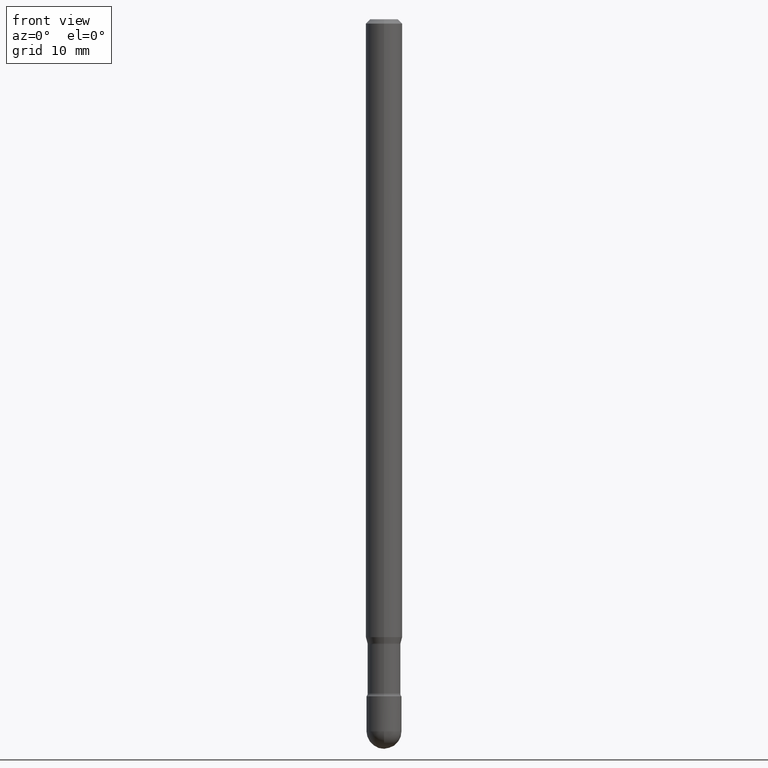
[diagram: clean part render]
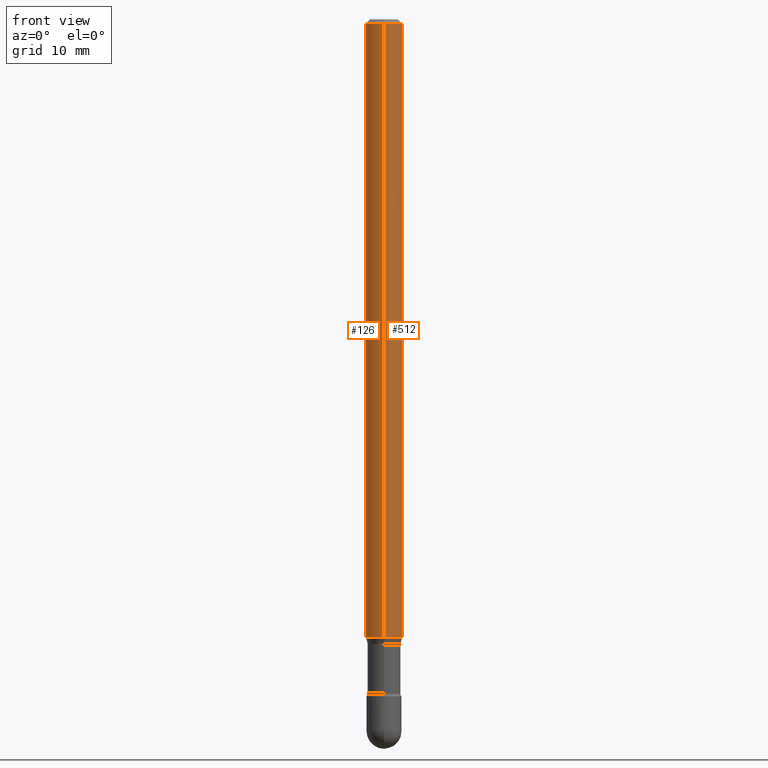
[diagram: same view with one multi-face feature highlighted, each face labeled with its STEP entity id]
A machine part, front view. The highlighted faces form ONE feature: a constant-radius fillet chain: 2 tangent blend faces with common blend radius 1.5875 mm. The faces share edges in the B-rep.
Their STEP definitions:
[1] entity #126 (Cylinder):
#15 = DIRECTION ( 'NONE',  ( -6.982962677686265922E-15, -1.000000000000000000, 4.370956789862821150E-15 ) ) ;
#23 = CARTESIAN_POINT ( 'NONE',  ( -4.364351673553912750E-16, -0.06250000000000005551, -0.01499999999999986587 ) ) ;
#40 = CARTESIAN_POINT ( 'NONE',  ( 4.440892098501144838E-16, 0.06249999999999263089, -2.117234490073830244 ) ) ;
#52 = DIRECTION ( 'NONE',  ( -2.445517834592790864E-29, 3.491411127372860730E-15, 1.000000000000000000 ) ) ;
#62 = EDGE_CURVE ( 'NONE', #348, #566, #446, .T. ) ;
#73 = VECTOR ( 'NONE', #52, 39.37007874015748143 ) ;
#87 = DIRECTION ( 'NONE',  ( -2.445517834592790864E-29, 3.491411127372860730E-15, 1.000000000000000000 ) ) ;
#98 = CYLINDRICAL_SURFACE ( 'NONE', #368, 0.06250000000000000000 ) ;
#104 = EDGE_LOOP ( 'NONE', ( #499, #440, #171, #421 ) ) ;
#109 = CARTESIAN_POINT ( 'NONE',  ( -1.169113584055446105E-44, 1.669184350826100908E-30, 4.780733988912460139E-16 ) ) ;
#126 = ADVANCED_FACE ( 'NONE', ( #494 ), #98, .T. ) ;
#127 = CIRCLE ( 'NONE', #247, 0.06250000000000000000 ) ;
#171 = ORIENTED_EDGE ( 'NONE', *, *, #62, .T. ) ;
#228 = CARTESIAN_POINT ( 'NONE',  ( 5.177734705490524081E-29, -7.392136057901375357E-15, -2.117234490073829800 ) ) ;
#229 = DIRECTION ( 'NONE',  ( -2.445517834592790864E-29, 3.491411127372861124E-15, 1.000000000000000000 ) ) ;
#236 = EDGE_CURVE ( 'NONE', #402, #566, #550, .T. ) ;
#247 = AXIS2_PLACEMENT_3D ( 'NONE', #228, #450, #15 ) ;
#258 = CARTESIAN_POINT ( 'NONE',  ( -4.364351673553397525E-16, -0.06250000000000736911, -2.117234490073829356 ) ) ;
#278 = CARTESIAN_POINT ( 'NONE',  ( 4.440892098500625669E-16, 0.06250000000000000000, 2.598602034304422183E-16 ) ) ;
#348 = VERTEX_POINT ( 'NONE', #258 ) ;
#364 = DIRECTION ( 'NONE',  ( -6.982962677686265922E-15, -1.000000000000000000, 3.483106191921935554E-15 ) ) ;
#368 = AXIS2_PLACEMENT_3D ( 'NONE', #109, #229, #508 ) ;
#374 = VERTEX_POINT ( 'NONE', #40 ) ;
#381 = DIRECTION ( 'NONE',  ( -2.445517834592790864E-29, 3.491411127372861124E-15, 1.000000000000000000 ) ) ;
#395 = VECTOR ( 'NONE', #87, 39.37007874015748143 ) ;
#402 = VERTEX_POINT ( 'NONE', #433 ) ;
#421 = ORIENTED_EDGE ( 'NONE', *, *, #236, .F. ) ;
#423 = EDGE_CURVE ( 'NONE', #374, #348, #127, .T. ) ;
#424 = CARTESIAN_POINT ( 'NONE',  ( 3.668276751889206264E-31, -5.237116691059320726E-17, -0.01500000000000008271 ) ) ;
#432 = EDGE_CURVE ( 'NONE', #374, #402, #484, .T. ) ;
#433 = CARTESIAN_POINT ( 'NONE',  ( 4.440892098501147796E-16, 0.06249999999999995837, -0.01500000000000030129 ) ) ;
#435 = AXIS2_PLACEMENT_3D ( 'NONE', #424, #381, #364 ) ;
#440 = ORIENTED_EDGE ( 'NONE', *, *, #423, .T. ) ;
#446 = LINE ( 'NONE', #527, #395 ) ;
#450 = DIRECTION ( 'NONE',  ( -2.445517834592790864E-29, 3.491411127372861124E-15, 1.000000000000000000 ) ) ;
#484 = LINE ( 'NONE', #278, #73 ) ;
#494 = FACE_OUTER_BOUND ( 'NONE', #104, .T. ) ;
#499 = ORIENTED_EDGE ( 'NONE', *, *, #432, .F. ) ;
#508 = DIRECTION ( 'NONE',  ( -6.982962677686265922E-15, -1.000000000000000000, 3.491411127372861124E-15 ) ) ;
#527 = CARTESIAN_POINT ( 'NONE',  ( -4.364351673553916201E-16, -0.06250000000000000000, 6.962865943520499082E-16 ) ) ;
#550 = CIRCLE ( 'NONE', #435, 0.06250000000000000000 ) ;
#566 = VERTEX_POINT ( 'NONE', #23 ) ;
[2] entity #512 (Cylinder):
#17 = ORIENTED_EDGE ( 'NONE', *, *, #187, .F. ) ;
#23 = CARTESIAN_POINT ( 'NONE',  ( -4.364351673553912750E-16, -0.06250000000000005551, -0.01499999999999986587 ) ) ;
#40 = CARTESIAN_POINT ( 'NONE',  ( 4.440892098501144838E-16, 0.06249999999999263089, -2.117234490073830244 ) ) ;
#41 = ORIENTED_EDGE ( 'NONE', *, *, #432, .T. ) ;
#52 = DIRECTION ( 'NONE',  ( -2.445517834592790864E-29, 3.491411127372860730E-15, 1.000000000000000000 ) ) ;
#58 = CARTESIAN_POINT ( 'NONE',  ( 3.668276751889206264E-31, -5.237116691059320726E-17, -0.01500000000000008271 ) ) ;
#62 = EDGE_CURVE ( 'NONE', #348, #566, #446, .T. ) ;
#73 = VECTOR ( 'NONE', #52, 39.37007874015748143 ) ;
#87 = DIRECTION ( 'NONE',  ( -2.445517834592790864E-29, 3.491411127372860730E-15, 1.000000000000000000 ) ) ;
#117 = AXIS2_PLACEMENT_3D ( 'NONE', #282, #412, #279 ) ;
#130 = ORIENTED_EDGE ( 'NONE', *, *, #62, .F. ) ;
#141 = EDGE_CURVE ( 'NONE', #348, #374, #303, .T. ) ;
#187 = EDGE_CURVE ( 'NONE', #566, #402, #213, .T. ) ;
#198 = EDGE_LOOP ( 'NONE', ( #537, #41, #17, #130 ) ) ;
#204 = AXIS2_PLACEMENT_3D ( 'NONE', #420, #241, #413 ) ;
#213 = CIRCLE ( 'NONE', #530, 0.06250000000000000000 ) ;
#241 = DIRECTION ( 'NONE',  ( -2.445517834592790864E-29, 3.491411127372861124E-15, 1.000000000000000000 ) ) ;
#258 = CARTESIAN_POINT ( 'NONE',  ( -4.364351673553397525E-16, -0.06250000000000736911, -2.117234490073829356 ) ) ;
#278 = CARTESIAN_POINT ( 'NONE',  ( 4.440892098500625669E-16, 0.06250000000000000000, 2.598602034304422183E-16 ) ) ;
#279 = DIRECTION ( 'NONE',  ( -6.982962677686265922E-15, -1.000000000000000000, 4.370956789862821150E-15 ) ) ;
#282 = CARTESIAN_POINT ( 'NONE',  ( 5.177734705490524081E-29, -7.392136057901375357E-15, -2.117234490073829800 ) ) ;
#295 = DIRECTION ( 'NONE',  ( -6.982962677686265922E-15, -1.000000000000000000, 3.483106191921935554E-15 ) ) ;
#303 = CIRCLE ( 'NONE', #117, 0.06250000000000000000 ) ;
#348 = VERTEX_POINT ( 'NONE', #258 ) ;
#374 = VERTEX_POINT ( 'NONE', #40 ) ;
#395 = VECTOR ( 'NONE', #87, 39.37007874015748143 ) ;
#401 = CYLINDRICAL_SURFACE ( 'NONE', #204, 0.06250000000000000000 ) ;
#402 = VERTEX_POINT ( 'NONE', #433 ) ;
#412 = DIRECTION ( 'NONE',  ( -2.445517834592790864E-29, 3.491411127372861124E-15, 1.000000000000000000 ) ) ;
#413 = DIRECTION ( 'NONE',  ( -6.982962677686265922E-15, -1.000000000000000000, 3.491411127372861124E-15 ) ) ;
#420 = CARTESIAN_POINT ( 'NONE',  ( -1.169113584055446105E-44, 1.669184350826100908E-30, 4.780733988912460139E-16 ) ) ;
#432 = EDGE_CURVE ( 'NONE', #374, #402, #484, .T. ) ;
#433 = CARTESIAN_POINT ( 'NONE',  ( 4.440892098501147796E-16, 0.06249999999999995837, -0.01500000000000030129 ) ) ;
#446 = LINE ( 'NONE', #527, #395 ) ;
#470 = DIRECTION ( 'NONE',  ( -2.445517834592790864E-29, 3.491411127372861124E-15, 1.000000000000000000 ) ) ;
#484 = LINE ( 'NONE', #278, #73 ) ;
#512 = ADVANCED_FACE ( 'NONE', ( #529 ), #401, .T. ) ;
#527 = CARTESIAN_POINT ( 'NONE',  ( -4.364351673553916201E-16, -0.06250000000000000000, 6.962865943520499082E-16 ) ) ;
#529 = FACE_OUTER_BOUND ( 'NONE', #198, .T. ) ;
#530 = AXIS2_PLACEMENT_3D ( 'NONE', #58, #470, #295 ) ;
#537 = ORIENTED_EDGE ( 'NONE', *, *, #141, .T. ) ;
#566 = VERTEX_POINT ( 'NONE', #23 ) ;